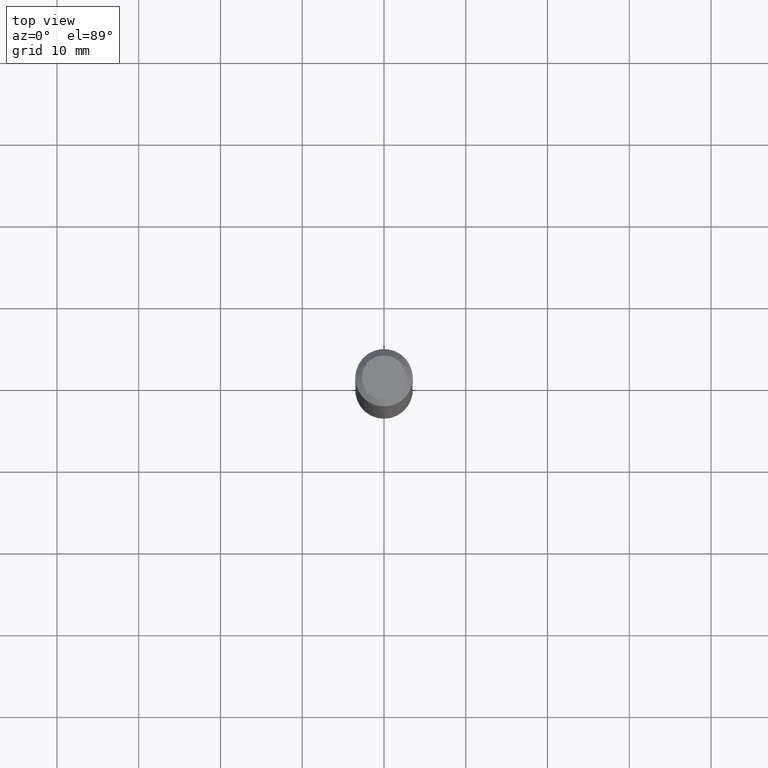
[diagram: clean part render]
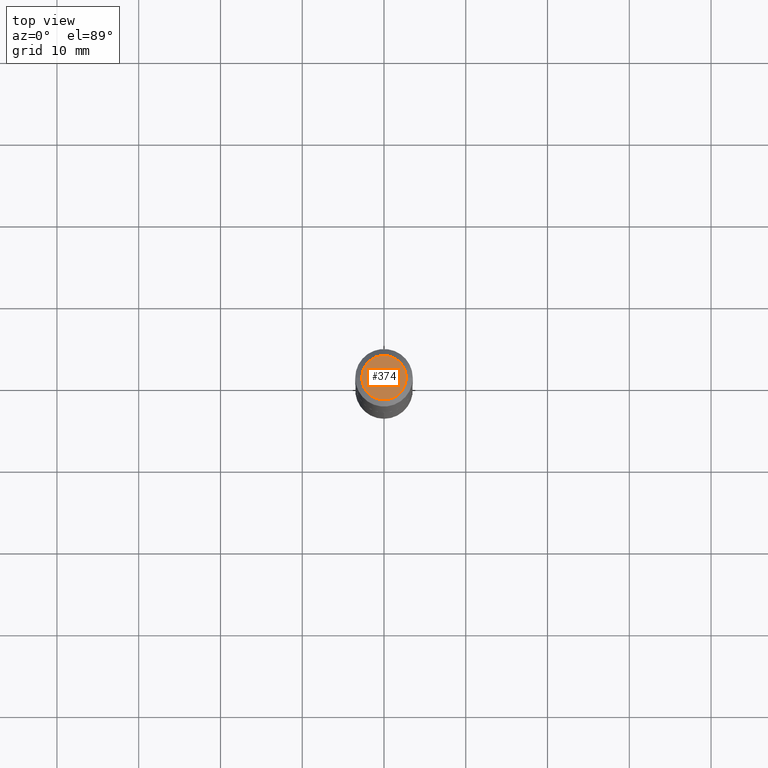
[diagram: same view with one face highlighted and labeled with its STEP entity id]
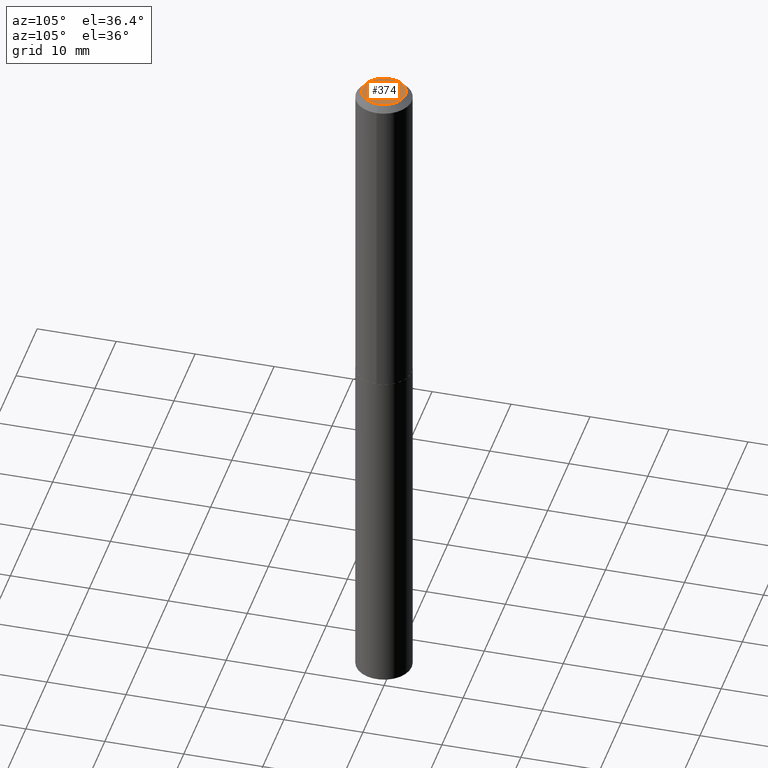
[diagram: same view with one face highlighted and labeled with its STEP entity id]
A machine part, top view. The second image highlights one B-rep face of the part: STEP entity #374.
A second angle (auxiliary view) of the same face is appended — the face is thin or edge-on in the first view.
In plain terms, the highlighted planar face has unit normal (0, -0, -1).
Its self-contained STEP definition (entity closure, byte-faithful):
#36 = DIRECTION ( 'NONE',  ( -2.445468806185136597E-29, 3.491481338843145583E-15, 1.000000000000000000 ) ) ;
#44 = ORIENTED_EDGE ( 'NONE', *, *, #303, .T. ) ;
#64 = AXIS2_PLACEMENT_3D ( 'NONE', #333, #302, #278 ) ;
#77 = CARTESIAN_POINT ( 'NONE',  ( -7.487088864773313307E-48, 1.068957861474242895E-33, 3.061616997868381535E-19 ) ) ;
#96 = EDGE_CURVE ( 'NONE', #279, #269, #134, .T. ) ;
#133 = PLANE ( 'NONE',  #64 ) ;
#134 = CIRCLE ( 'NONE', #163, 0.1072499999999999981 ) ;
#160 = CARTESIAN_POINT ( 'NONE',  ( -0.1072499999999999981, 8.034771431012755151E-16, 3.061616997814100162E-19 ) ) ;
#163 = AXIS2_PLACEMENT_3D ( 'NONE', #77, #262, #206 ) ;
#174 = ORIENTED_EDGE ( 'NONE', *, *, #96, .T. ) ;
#206 = DIRECTION ( 'NONE',  ( 1.000000000000000000, -6.982962677686266711E-15, 4.876199892921952683E-29 ) ) ;
#212 = CARTESIAN_POINT ( 'NONE',  ( 0.1072499999999999981, -8.975380873956014926E-16, 3.061616997925946618E-19 ) ) ;
#217 = FACE_OUTER_BOUND ( 'NONE', #263, .T. ) ;
#221 = CARTESIAN_POINT ( 'NONE',  ( -7.487088864773313307E-48, 1.068957861474242895E-33, 3.061616997868381535E-19 ) ) ;
#231 = AXIS2_PLACEMENT_3D ( 'NONE', #221, #36, #327 ) ;
#262 = DIRECTION ( 'NONE',  ( -2.445468806185136597E-29, 3.491481338843145583E-15, 1.000000000000000000 ) ) ;
#263 = EDGE_LOOP ( 'NONE', ( #174, #44 ) ) ;
#269 = VERTEX_POINT ( 'NONE', #212 ) ;
#278 = DIRECTION ( 'NONE',  ( -1.000000000000000000, 6.982962677686265922E-15, -4.876176775795935793E-29 ) ) ;
#279 = VERTEX_POINT ( 'NONE', #160 ) ;
#302 = DIRECTION ( 'NONE',  ( 2.438088387897960049E-29, -3.491481338843145188E-15, -1.000000000000000000 ) ) ;
#303 = EDGE_CURVE ( 'NONE', #269, #279, #350, .T. ) ;
#327 = DIRECTION ( 'NONE',  ( 1.000000000000000000, -6.982962677686266711E-15, 4.876199892921952683E-29 ) ) ;
#333 = CARTESIAN_POINT ( 'NONE',  ( -3.743544432386656653E-48, 5.344789307371214474E-34, 1.530808498934190767E-19 ) ) ;
#350 = CIRCLE ( 'NONE', #231, 0.1072499999999999981 ) ;
#374 = ADVANCED_FACE ( 'NONE', ( #217 ), #133, .F. ) ;